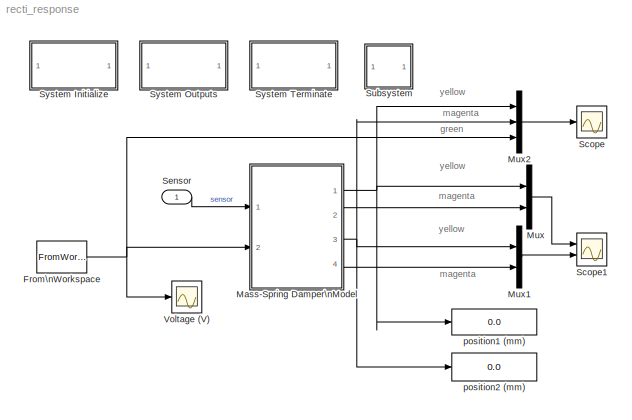
MODEL recti_response
KIND model
BLOCK [FromWorkspace] From\nWorkspace
  SID = 2
  SampleTime = T
  VariableName = uk
  ZeroCross = on
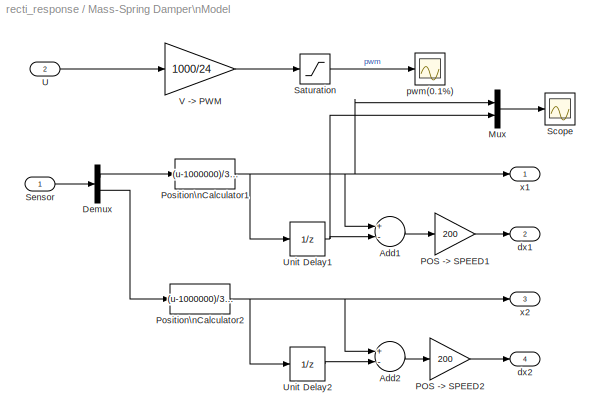
BLOCK [SubSystem] Mass-Spring Damper\nModel
  FunctionWithSeparateData = off
  MaskHideContents = off
  MinAlgLoopOccurrences = off
  Opaque = off
  Ports = [2, 4]
  PropExecContextOutsideSubsystem = off
  RTWSystemCode = Auto
  RequestExecContextInheritance = off
  SID = 3
BLOCK [Sum] Mass-Spring Damper\nModel/Add1
  InputSameDT = off
  Inputs = +-
  OutDataType = sfix(16)
  OutDataTypeMode = Inherit via internal rule
  OutDataTypeStr = Inherit: Inherit via internal rule
  OutScaling = 2^-10
  Ports = [2, 1]
  SID = 6
  SaturateOnIntegerOverflow = off
BLOCK [Sum] Mass-Spring Damper\nModel/Add2
  InputSameDT = off
  Inputs = +-
  OutDataType = sfix(16)
  OutDataTypeMode = Inherit via internal rule
  OutDataTypeStr = Inherit: Inherit via internal rule
  OutScaling = 2^-10
  Ports = [2, 1]
  SID = 7
  SaturateOnIntegerOverflow = off
BLOCK [Demux] Mass-Spring Damper\nModel/Demux
  DisplayOption = bar
  Outputs = 2
  Ports = [1, 2]
  SID = 8
BLOCK [Mux] Mass-Spring Damper\nModel/Mux
  DisplayOption = bar
  Inputs = 2
  Ports = [2, 1]
  SID = 9
BLOCK [Gain] Mass-Spring Damper\nModel/POS -> SPEED1
  Gain = 200
  OutDataType = sfix(16)
  OutDataTypeMode = Inherit via internal rule
  OutDataTypeStr = Inherit: Inherit via internal rule
  OutScaling = 2^0
  ParameterDataType = sfix(16)
  ParameterScaling = 2^0
  SID = 10
  SaturateOnIntegerOverflow = off
BLOCK [Gain] Mass-Spring Damper\nModel/POS -> SPEED2
  Gain = 200
  OutDataType = sfix(16)
  OutDataTypeMode = Inherit via internal rule
  OutDataTypeStr = Inherit: Inherit via internal rule
  OutScaling = 2^0
  ParameterDataType = sfix(16)
  ParameterScaling = 2^0
  SID = 11
  SaturateOnIntegerOverflow = off
BLOCK [Fcn] Mass-Spring Damper\nModel/Position\nCalculator1
  Expr = (u-1000000)/39.44
  SID = 12
BLOCK [Fcn] Mass-Spring Damper\nModel/Position\nCalculator2
  Expr = (u-1000000)/39.44
  SID = 13
BLOCK [Saturate] Mass-Spring Damper\nModel/Saturation
  LowerLimit = 0
  SID = 14
  UpperLimit = 800
BLOCK [Scope] Mass-Spring Damper\nModel/Scope
  DataFormat = StructureWithTime
  Floating = off
  NumInputPorts = 1
  Ports = [1]
  SID = 15
  SampleTime = 0
  SaveName = ScopeData4
BLOCK [Inport] Mass-Spring Damper\nModel/Sensor
  IconDisplay = Port number
  OutDataType = sfix(16)
  OutScaling = 2^0
  PortDimensions = 2
  SID = 4
BLOCK [Inport] Mass-Spring Damper\nModel/U
  IconDisplay = Port number
  OutDataType = sfix(16)
  OutScaling = 2^0
  Port = 2
  PortDimensions = 1
  SID = 5
BLOCK [UnitDelay] Mass-Spring Damper\nModel/Unit Delay1
  SID = 16
  SampleTime = -1
BLOCK [UnitDelay] Mass-Spring Damper\nModel/Unit Delay2
  SID = 17
  SampleTime = -1
BLOCK [Gain] Mass-Spring Damper\nModel/V -> PWM
  Gain = 1000/24
  OutDataType = sfix(16)
  OutDataTypeMode = Inherit via internal rule
  OutDataTypeStr = Inherit: Inherit via internal rule
  OutScaling = 2^0
  ParameterDataType = sfix(16)
  ParameterScaling = 2^0
  SID = 18
  SaturateOnIntegerOverflow = off
BLOCK [Outport] Mass-Spring Damper\nModel/dx1
  IconDisplay = Port number
  OutDataType = sfix(16)
  OutScaling = 2^0
  Port = 2
  SID = 21
BLOCK [Outport] Mass-Spring Damper\nModel/dx2
  IconDisplay = Port number
  OutDataType = sfix(16)
  OutScaling = 2^0
  Port = 4
  SID = 23
BLOCK [Scope] Mass-Spring Damper\nModel/pwm(0.1%)
  DataFormat = Array
  Floating = off
  LimitDataPoints = off
  NumInputPorts = 1
  Ports = [1]
  SID = 19
  SampleTime = 0
  SaveName = ScopeData3
  SaveToWorkspace = on
  YMax = 1100
  YMin = -1100
BLOCK [Outport] Mass-Spring Damper\nModel/x1
  IconDisplay = Port number
  OutDataType = sfix(16)
  OutScaling = 2^0
  SID = 20
BLOCK [Outport] Mass-Spring Damper\nModel/x2
  IconDisplay = Port number
  OutDataType = sfix(16)
  OutScaling = 2^0
  Port = 3
  SID = 22
BLOCK [Mux] Mux
  DisplayOption = bar
  Inputs = 2
  Ports = [2, 1]
  SID = 24
BLOCK [Mux] Mux1
  DisplayOption = bar
  Inputs = 2
  Ports = [2, 1]
  SID = 25
BLOCK [Mux] Mux2
  DisplayOption = bar
  Inputs = 3
  Ports = [3, 1]
  SID = 26
BLOCK [Scope] Scope
  DataFormat = StructureWithTime
  Floating = off
  LimitDataPoints = off
  NumInputPorts = 1
  Ports = [1]
  SID = 27
  SampleTime = 0
  SaveToWorkspace = on
BLOCK [Scope] Scope1
  DataFormat = StructureWithTime
  Floating = off
  LimitDataPoints = off
  NumInputPorts = 2
  Ports = [2]
  SID = 28
  SampleTime = 0
  SaveName = ScopeData1
  SaveToWorkspace = on
  YMax = 700~5
  YMin = 0~-5
BLOCK [Inport] Sensor
  IconDisplay = Port number
  OutDataType = sfix(16)
  OutScaling = 2^0
  PortDimensions = 2
  SID = 1
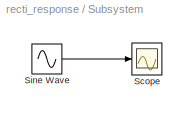
BLOCK [SubSystem] Subsystem
  FunctionWithSeparateData = off
  MaskHideContents = off
  MinAlgLoopOccurrences = off
  Opaque = off
  Ports = []
  PropExecContextOutsideSubsystem = off
  RTWSystemCode = Auto
  RequestExecContextInheritance = off
  SID = 35
  TreatAsAtomicUnit = on
BLOCK [Scope] Subsystem/Scope
  DataFormat = StructureWithTime
  Floating = off
  NumInputPorts = 1
  Ports = [1]
  SID = 36
  SampleTime = 0
  SaveName = ScopeData1
BLOCK [Sin] Subsystem/Sine Wave
  Amplitude = 1
  Bias = 0
  Frequency = 1
  Offset = 0
  Phase = 0
  Ports = [0, 1]
  SID = 37
  SampleTime = 0
  Samples = 10
BLOCK [SubSystem] System Initialize
  CopyFcn = cccopyfcn(gcb)
  FunctionWithSeparateData = off
  MaskDescription = Add code to a systems Initialize function
  MaskDisplay = disp('System\\nInitialize');
  MaskEnableString = off
  MaskHelp = This block contains text fields to insert custom user code sections at the declaration, execution and exit sections of the systems initialize function.  By placing this block inside a subsytem, the custom user code will appear in that subsystems function.
  MaskHideContents = off
  MaskIconFrame = on
  MaskIconOpaque = on
  MaskIconRotate = none
  MaskIconUnits = autoscale
  MaskPortRotate = default
  MaskPromptString = Mask Parameter 1:
  MaskStyleString = edit
  MaskToolTipString = on
  MaskTunableValueString = on
  MaskType = System Initialize
  MaskValueString = 0
  MaskVariables = ShowInLibBrowser=@1;
  MaskVisibilityString = off
  MinAlgLoopOccurrences = off
  Opaque = off
  OpenFcn = ccopenfcn('System Initialize Function')
  Ports = []
  PropExecContextOutsideSubsystem = off
  RTWSystemCode = Auto
  RequestExecContextInheritance = off
  SID = 29
BLOCK [SubSystem] System Outputs
  CopyFcn = cccopyfcn(gcb)
  FunctionWithSeparateData = off
  MaskDescription = Add code to a systems Outputs function
  MaskDisplay = disp('System\\nOutputs');
  MaskEnableString = off
  MaskHelp = This block contains text fields to insert custom user code sections at the declaration, execution and exit sections of the systems outputs function.  By placing this block inside a subsytem, the custom user code will appear in that subsystems function.
  MaskHideContents = off
  MaskIconFrame = on
  MaskIconOpaque = on
  MaskIconRotate = none
  MaskIconUnits = autoscale
  MaskPortRotate = default
  MaskPromptString = Mask Parameter 1:
  MaskStyleString = edit
  MaskToolTipString = on
  MaskTunableValueString = on
  MaskType = System Outputs
  MaskValueString = 0
  MaskVariables = ShowInLibBrowser=@1;
  MaskVisibilityString = off
  MinAlgLoopOccurrences = off
  Opaque = off
  OpenFcn = ccopenfcn('System Outputs Function')
  Ports = []
  PropExecContextOutsideSubsystem = off
  RTWSystemCode = Auto
  RequestExecContextInheritance = off
  SID = 30
BLOCK [SubSystem] System Terminate
  CopyFcn = cccopyfcn(gcb)
  FunctionWithSeparateData = off
  MaskDescription = Add code to a systems Terminate function
  MaskDisplay = disp('System\\nTerminate');
  MaskEnableString = off
  MaskHelp = This block contains text fields to insert custom user code sections at the declaration, execution and exit sections of the systems terminate function.  By placing this block inside a subsytem, the custom user code will appear in that subsystems function.
  MaskHideContents = off
  MaskIconFrame = on
  MaskIconOpaque = on
  MaskIconRotate = none
  MaskIconUnits = autoscale
  MaskPortRotate = default
  MaskPromptString = Mask Parameter 1:
  MaskStyleString = edit
  MaskToolTipString = on
  MaskTunableValueString = on
  MaskType = System Terminate
  MaskValueString = 0
  MaskVariables = ShowInLibBrowser=@1;
  MaskVisibilityString = off
  MinAlgLoopOccurrences = off
  Opaque = off
  OpenFcn = ccopenfcn('System Terminate Function')
  Ports = []
  PropExecContextOutsideSubsystem = off
  RTWSystemCode = Auto
  RequestExecContextInheritance = off
  SID = 31
BLOCK [Scope] Voltage (V)
  DataFormat = Array
  Floating = off
  LimitDataPoints = off
  NumInputPorts = 1
  Ports = [1]
  SID = 32
  SampleTime = 0
  SaveName = ScopeData2
  SaveToWorkspace = on
  YMax = 700
  YMin = 0
BLOCK [Display] position1 (mm)
  Decimation = 1
  Lockdown = off
  Ports = [1]
  SID = 33
BLOCK [Display] position2 (mm)
  Decimation = 1
  Lockdown = off
  Ports = [1]
  SID = 34
ANNOTATION (root): green
ANNOTATION (root): magenta
ANNOTATION (root): yellow
NET From\nWorkspace:1 -> Mass-Spring Damper\nModel:2, Mux2:3, Voltage (V):1
LINE Mass-Spring Damper\nModel/Add1:1 -> Mass-Spring Damper\nModel/POS -> SPEED1:1
LINE Mass-Spring Damper\nModel/Add2:1 -> Mass-Spring Damper\nModel/POS -> SPEED2:1
LINE Mass-Spring Damper\nModel/Demux:1 -> Mass-Spring Damper\nModel/Position\nCalculator1:1
LINE Mass-Spring Damper\nModel/Demux:2 -> Mass-Spring Damper\nModel/Position\nCalculator2:1
LINE Mass-Spring Damper\nModel/Mux:1 -> Mass-Spring Damper\nModel/Scope:1
LINE Mass-Spring Damper\nModel/POS -> SPEED1:1 -> Mass-Spring Damper\nModel/dx1:1
LINE Mass-Spring Damper\nModel/POS -> SPEED2:1 -> Mass-Spring Damper\nModel/dx2:1
NET Mass-Spring Damper\nModel/Position\nCalculator1:1 -> Mass-Spring Damper\nModel/Add1:1, Mass-Spring Damper\nModel/Mux:1, Mass-Spring Damper\nModel/Unit Delay1:1, Mass-Spring Damper\nModel/x1:1
NET Mass-Spring Damper\nModel/Position\nCalculator2:1 -> Mass-Spring Damper\nModel/Add2:1, Mass-Spring Damper\nModel/Unit Delay2:1, Mass-Spring Damper\nModel/x2:1
LINE Mass-Spring Damper\nModel/Saturation:1 -> Mass-Spring Damper\nModel/pwm(0.1%):1
LINE Mass-Spring Damper\nModel/Sensor:1 -> Mass-Spring Damper\nModel/Demux:1
LINE Mass-Spring Damper\nModel/U:1 -> Mass-Spring Damper\nModel/V -> PWM:1
NET Mass-Spring Damper\nModel/Unit Delay1:1 -> Mass-Spring Damper\nModel/Add1:2, Mass-Spring Damper\nModel/Mux:2
LINE Mass-Spring Damper\nModel/Unit Delay2:1 -> Mass-Spring Damper\nModel/Add2:2
LINE Mass-Spring Damper\nModel/V -> PWM:1 -> Mass-Spring Damper\nModel/Saturation:1
NET Mass-Spring Damper\nModel:1 -> Mux2:1, Mux:1, position1 (mm):1
LINE Mass-Spring Damper\nModel:2 -> Mux:2
NET Mass-Spring Damper\nModel:3 -> Mux1:1, Mux2:2, position2 (mm):1
LINE Mass-Spring Damper\nModel:4 -> Mux1:2
LINE Mux1:1 -> Scope1:2
LINE Mux2:1 -> Scope:1
LINE Mux:1 -> Scope1:1
LINE Sensor:1 -> Mass-Spring Damper\nModel:1
LINE Subsystem/Sine Wave:1 -> Subsystem/Scope:1
note: NET lines group one-source signal fan-out (src -> all destinations, sorted); 1:1 wires keep LINE
